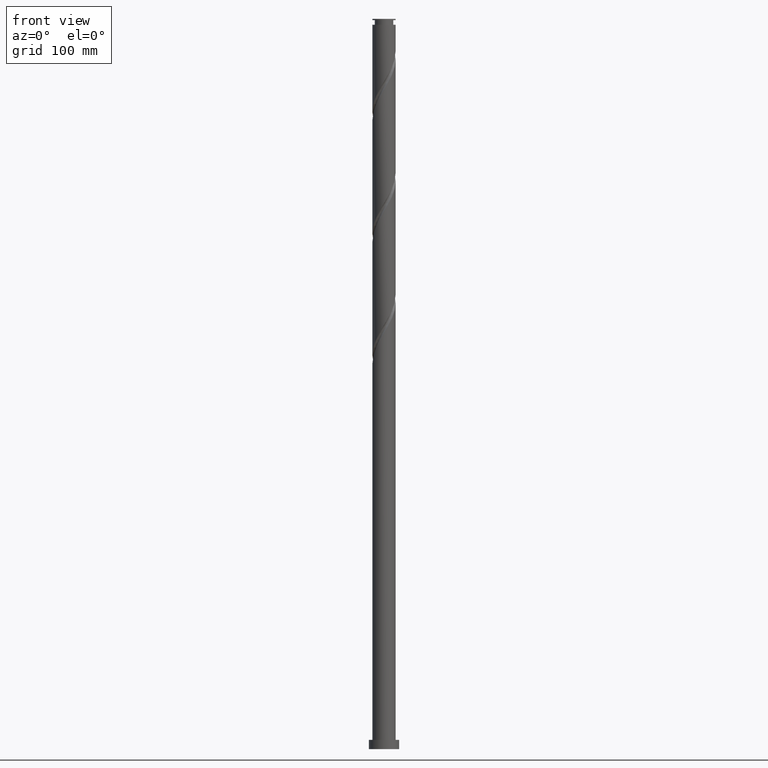
[diagram: clean part render]
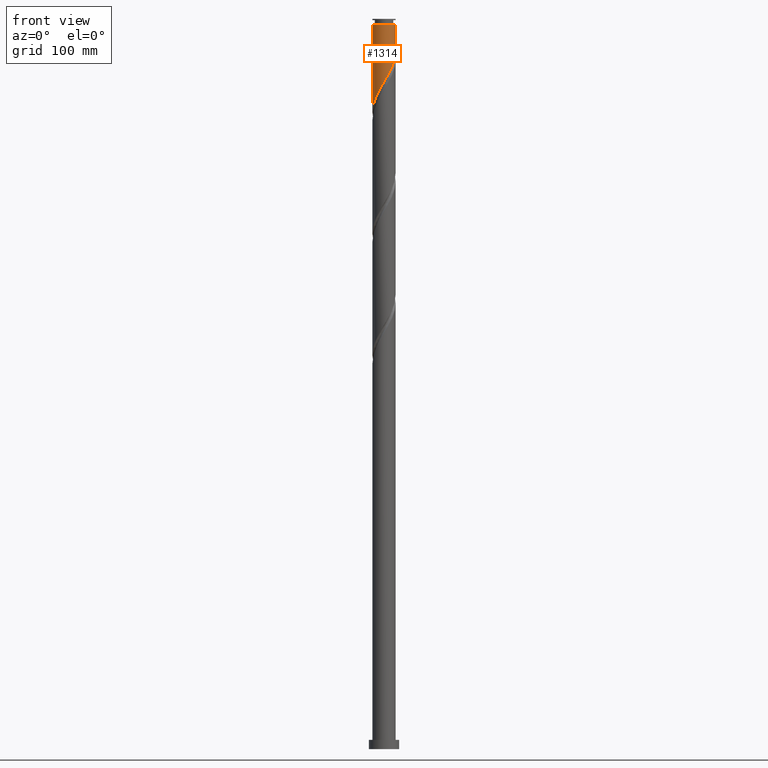
[diagram: same view with one face highlighted and labeled with its STEP entity id]
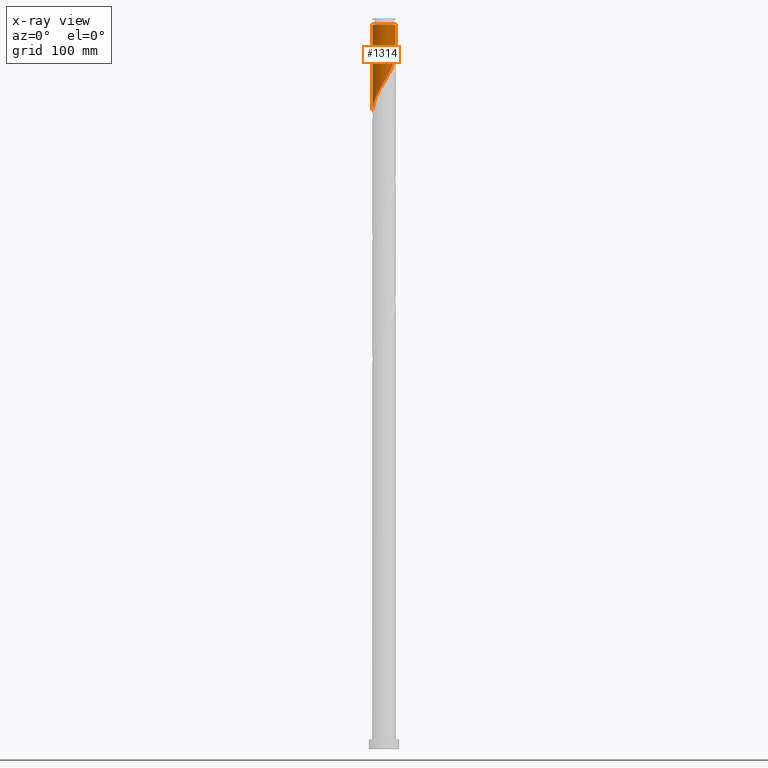
[diagram: x-ray of the same camera — body ghosted, the highlighted face saturated]
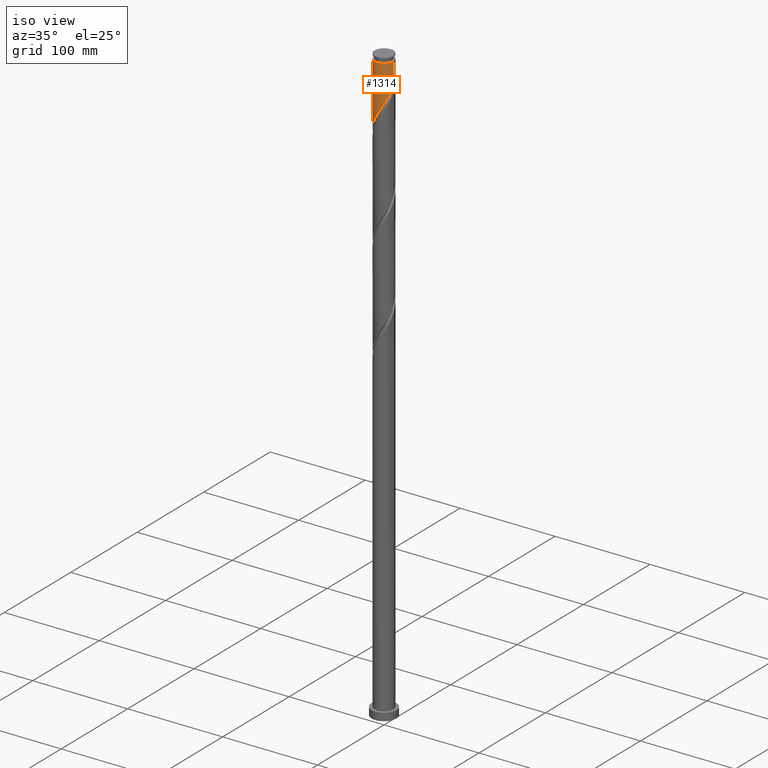
[diagram: same view with one face highlighted and labeled with its STEP entity id]
A machine part, front view. The second image highlights one B-rep face of the part: STEP entity #1314.
The next image is the same camera in x-ray: the body ghosted, the highlighted face saturated — about 0% of this face is hidden behind the body in this view.
A second angle (iso view) of the same face is appended — the face is thin or edge-on in the first view.
In plain terms, the highlighted cylindrical surface (edge-blend (fillet) strip) has radius 10 mm, axis along (-0, -0, -1).
Its self-contained STEP definition (entity closure, byte-faithful):
#8 = ORIENTED_EDGE ( 'NONE', *, *, #754, .F. ) ;
#68 = CARTESIAN_POINT ( 'NONE',  ( -10.00000000000000178, 0.000000000000000000, 630.0000000000000000 ) ) ;
#94 = CARTESIAN_POINT ( 'NONE',  ( -3.756837045000868791, -9.267479453298463454, 569.3287334147013325 ) ) ;
#119 = CARTESIAN_POINT ( 'NONE',  ( 9.307182251975374854, -3.772931706511718719, 595.5787334147015599 ) ) ;
#127 = CARTESIAN_POINT ( 'NONE',  ( -5.395764636050379259, -8.419366008931321588, 566.2404981205842205 ) ) ;
#137 = CARTESIAN_POINT ( 'NONE',  ( 9.999999999999998224, -0.5401998367926740263, 601.1112582515003169 ) ) ;
#263 = CARTESIAN_POINT ( 'NONE',  ( 4.336283023954736748, -9.058438312957086680, 583.2257922382309516 ) ) ;
#291 = CARTESIAN_POINT ( 'NONE',  ( -10.00000000000000178, -0.3845118788767973861, 550.1585832355727916 ) ) ;
#304 = CARTESIAN_POINT ( 'NONE',  ( -8.072826484824911830, -5.901649985038884161, 560.0640275323484047 ) ) ;
#312 = VECTOR ( 'NONE', #578, 1000.000000000000000 ) ;
#387 = CIRCLE ( 'NONE', #2055, 9.999999999999937828 ) ;
#411 = DIRECTION ( 'NONE',  ( -1.000000000000000000, 0.000000000000000000, 0.000000000000000000 ) ) ;
#422 = CARTESIAN_POINT ( 'NONE',  ( 0.000000000000000000, 0.000000000000000000, 624.9169687088192404 ) ) ;
#428 = CYLINDRICAL_SURFACE ( 'NONE', #1432, 10.00000000000000178 ) ;
#437 = DIRECTION ( 'NONE',  ( -0.000000000000000000, -0.000000000000000000, -1.000000000000000000 ) ) ;
#459 = CARTESIAN_POINT ( 'NONE',  ( 9.941806644708183427, -1.077256069482188439, 600.2110863558780238 ) ) ;
#472 = CARTESIAN_POINT ( 'NONE',  ( -6.175933789484160386, -7.919374783491094583, 564.6963804735250960 ) ) ;
#578 = DIRECTION ( 'NONE',  ( -0.000000000000000000, -0.000000000000000000, -1.000000000000000000 ) ) ;
#610 = CARTESIAN_POINT ( 'NONE',  ( 0.000000000000000000, 0.000000000000000000, 630.0000000000000000 ) ) ;
#625 = EDGE_CURVE ( 'NONE', #2017, #1866, #387, .T. ) ;
#629 = VERTEX_POINT ( 'NONE', #1241 ) ;
#646 = CARTESIAN_POINT ( 'NONE',  ( 9.574583210674491696, -2.885715914962902140, 597.1228510617603433 ) ) ;
#696 = EDGE_CURVE ( 'NONE', #1866, #629, #2117, .T. ) ;
#754 = EDGE_CURVE ( 'NONE', #2017, #1170, #1843, .T. ) ;
#781 = CARTESIAN_POINT ( 'NONE',  ( -10.00000000000000000, 1.105467014122338344E-15, 549.5151774835130709 ) ) ;
#793 = CARTESIAN_POINT ( 'NONE',  ( 7.885592126811174829, -6.149588344724679523, 590.9463804735249823 ) ) ;
#805 = CARTESIAN_POINT ( 'NONE',  ( 3.467124458470600246, -9.379714707253892669, 581.6816745911722819 ) ) ;
#815 = CARTESIAN_POINT ( 'NONE',  ( -9.659608383748043536, -2.586883428495467374, 553.8875569441132711 ) ) ;
#826 = CARTESIAN_POINT ( 'NONE',  ( -9.419898332860572765, -3.481977962603644450, 555.4316745911719408 ) ) ;
#937 = DIRECTION ( 'NONE',  ( -0.000000000000000000, -0.000000000000000000, -1.000000000000000000 ) ) ;
#945 = CARTESIAN_POINT ( 'NONE',  ( -1.081871141041355289, -9.984398327774622217, 573.9610863558780238 ) ) ;
#972 = CARTESIAN_POINT ( 'NONE',  ( 1.684572021217821014, -9.857089687394049449, 578.5934392970544877 ) ) ;
#974 = DIRECTION ( 'NONE',  ( -0.000000000000000000, -0.000000000000000000, -1.000000000000000000 ) ) ;
#985 = CARTESIAN_POINT ( 'NONE',  ( -9.899318434635519637, -1.691788894387293407, 552.3434392970544877 ) ) ;
#1124 = DIRECTION ( 'NONE',  ( -1.000000000000000000, 0.000000000000000000, 0.000000000000000000 ) ) ;
#1134 = CARTESIAN_POINT ( 'NONE',  ( 5.926933237340483274, -8.107411272014974912, 586.3140275323485184 ) ) ;
#1146 = CARTESIAN_POINT ( 'NONE',  ( 8.455435405720850284, -5.418880625476916180, 592.4904981205838794 ) ) ;
#1158 = CARTESIAN_POINT ( 'NONE',  ( -6.850945933925570941, -7.284541153046544260, 563.1522628264660852 ) ) ;
#1170 = VERTEX_POINT ( 'NONE', #1607 ) ;
#1203 = ORIENTED_EDGE ( 'NONE', *, *, #696, .T. ) ;
#1241 = CARTESIAN_POINT ( 'NONE',  ( -10.00000000000000000, 1.105467014122338344E-15, 549.5151774835130709 ) ) ;
#1289 = CARTESIAN_POINT ( 'NONE',  ( 2.597965892986459302, -9.700991101550700435, 580.1375569441131574 ) ) ;
#1298 = EDGE_CURVE ( 'NONE', #1170, #629, #2085, .T. ) ;
#1308 = CARTESIAN_POINT ( 'NONE',  ( 10.00000000000000000, -1.493874343408565383E-15, 602.0151774835130709 ) ) ;
#1314 = ADVANCED_FACE ( 'NONE', ( #2132 ), #428, .T. ) ;
#1322 = CARTESIAN_POINT ( 'NONE',  ( 5.131608130647609123, -8.582924792486027243, 584.7699098852897350 ) ) ;
#1432 = AXIS2_PLACEMENT_3D ( 'NONE', #610, #437, #1124 ) ;
#1452 = CARTESIAN_POINT ( 'NONE',  ( 0.7711781494491763977, -10.01318827323739669, 577.0493216499957043 ) ) ;
#1464 = CARTESIAN_POINT ( 'NONE',  ( 8.881308828848109016, -4.595906165994319892, 594.0346157676426628 ) ) ;
#1492 = ORIENTED_EDGE ( 'NONE', *, *, #625, .T. ) ;
#1499 = CARTESIAN_POINT ( 'NONE',  ( -2.898078607385138561, -9.615601672225377428, 570.8728510617603433 ) ) ;
#1607 = CARTESIAN_POINT ( 'NONE',  ( 10.00000000000000000, -1.493874343408565383E-15, 602.0151774835130709 ) ) ;
#1620 = CARTESIAN_POINT ( 'NONE',  ( -4.615595482616598133, -8.919357234371549481, 567.7846157676426628 ) ) ;
#1653 = CARTESIAN_POINT ( 'NONE',  ( 9.841984169373612090, -1.998500123414085561, 598.6669687088191267 ) ) ;
#1784 = CARTESIAN_POINT ( 'NONE',  ( 6.621341042620987771, -7.493853667993711554, 587.8581451794074155 ) ) ;
#1821 = CARTESIAN_POINT ( 'NONE',  ( -9.019796612071706576, -4.317785205039711194, 556.9757922382310653 ) ) ;
#1832 = CARTESIAN_POINT ( 'NONE',  ( -8.619694891282831506, -5.153592447475782379, 558.5199098852898487 ) ) ;
#1834 = CARTESIAN_POINT ( 'NONE',  ( 10.00000000000000178, 1.224646799147353454E-15, 630.0000000000000000 ) ) ;
#1843 = LINE ( 'NONE', #1834, #1976 ) ;
#1866 = VERTEX_POINT ( 'NONE', #1900 ) ;
#1900 = CARTESIAN_POINT ( 'NONE',  ( -9.999999999999937828, 0.000000000000000000, 624.9169687088192404 ) ) ;
#1914 = EDGE_LOOP ( 'NONE', ( #8, #1492, #1203, #2158 ) ) ;
#1953 = CARTESIAN_POINT ( 'NONE',  ( -9.970473777339142529, -0.7678884394185052642, 550.7993216499957043 ) ) ;
#1960 = CARTESIAN_POINT ( 'NONE',  ( -7.525958078366985937, -6.649707522601991272, 561.6081451794071882 ) ) ;
#1976 = VECTOR ( 'NONE', #974, 1000.000000000000000 ) ;
#1990 = CARTESIAN_POINT ( 'NONE',  ( -0.1553464957960916382, -9.998793300506012116, 575.5052040029369209 ) ) ;
#2017 = VERTEX_POINT ( 'NONE', #2109 ) ;
#2055 = AXIS2_PLACEMENT_3D ( 'NONE', #422, #937, #411 ) ;
#2085 =( BOUNDED_CURVE ( )  B_SPLINE_CURVE ( 2, ( #1308, #137, #459, #1653, #646, #119, #1464, #1146, #793, #2155, #1784, #1134, #1322, #263, #805, #1289, #972, #1452, #1990, #945, #2125, #1499, #94, #1620, #127, #472, #1158, #1960, #304, #1832, #1821, #826, #815, #985, #1953, #291, #781 ),
 .UNSPECIFIED., .F., .T. ) 
 B_SPLINE_CURVE_WITH_KNOTS ( ( 3, 2, 2, 2, 2, 2, 2, 2, 2, 2, 2, 2, 2, 2, 2, 2, 2, 2, 3 ),
 ( 0.3045293573162906609, 0.3088235294117647189, 0.3161764705882352811, 0.3235294117647058987, 0.3308823529411764608, 0.3382352941176470784, 0.3455882352941176405, 0.3529411764705882582, 0.3602941176470588203, 0.3676470588235294379, 0.3750000000000000000, 0.3823529411764705621, 0.3897058823529411797, 0.3970588235294117418, 0.4044117647058823595, 0.4117647058823529216, 0.4191176470588235392, 0.4264705882352941013, 0.4295293573162906609 ),
 .UNSPECIFIED. ) 
 CURVE ( )  GEOMETRIC_REPRESENTATION_ITEM ( )  RATIONAL_B_SPLINE_CURVE ( ( 0.9072066346052958252, 0.9068261157890629143, 0.9090909090909340406, 0.9052128875409651831, 0.9090909090909340406, 0.9052128875409651831, 0.9090909090909340406, 0.9052128875409651831, 0.9090909090909340406, 0.9052128875409651831, 0.9090909090909340406, 0.9052128875409651831, 0.9090909090909340406, 0.9052128875409651831, 0.9090909090909340406, 0.9052128875409651831, 0.9090909090909340406, 0.9052128875409651831, 0.9090909090909340406, 0.9052128875409651831, 0.9090909090909340406, 0.9052128875409651831, 0.9090909090909340406, 0.9052128875409651831, 0.9090909090909340406, 0.9052128875409651831, 0.9090909090909340406, 0.9052128875409651831, 0.9090909090909340406, 0.9052128875409651831, 0.9090909090909340406, 0.9052128875409651831, 0.9090909090909340406, 0.9052128875409651831, 0.9090909090909340406, 0.9074776808428364205, 0.9072066346052958252 ) ) 
 REPRESENTATION_ITEM ( '' )  );
#2109 = CARTESIAN_POINT ( 'NONE',  ( 9.999999999999937828, 1.224646799147349312E-15, 624.9169687088192404 ) ) ;
#2117 = LINE ( 'NONE', #68, #312 ) ;
#2125 = CARTESIAN_POINT ( 'NONE',  ( -1.989974874213249034, -9.799999999999998934, 572.4169687088193541 ) ) ;
#2132 = FACE_OUTER_BOUND ( 'NONE', #1914, .T. ) ;
#2155 = CARTESIAN_POINT ( 'NONE',  ( 7.315748847901493157, -6.880296063972449971, 589.4022628264663126 ) ) ;
#2158 = ORIENTED_EDGE ( 'NONE', *, *, #1298, .F. ) ;